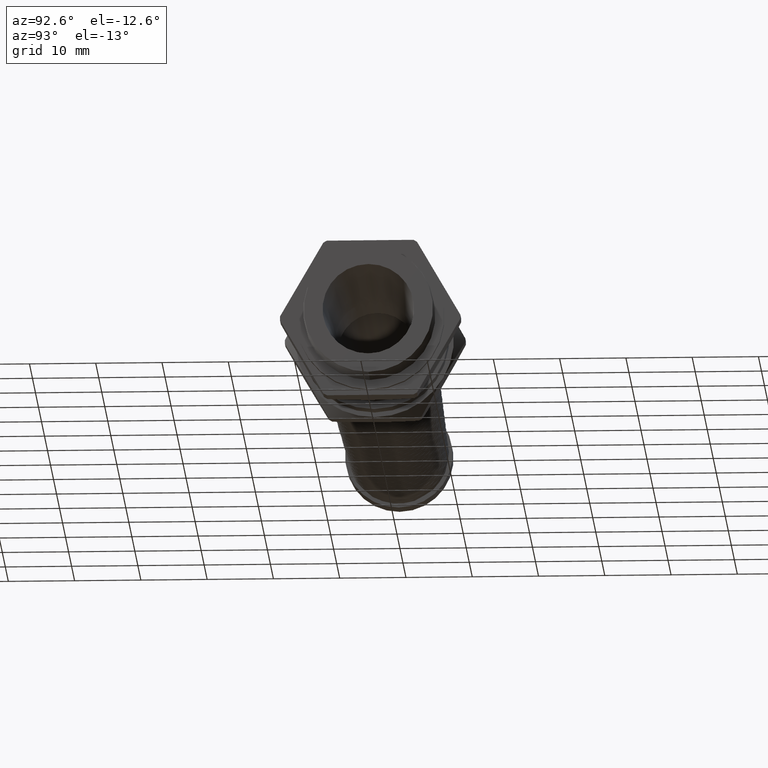
[diagram: clean part render]
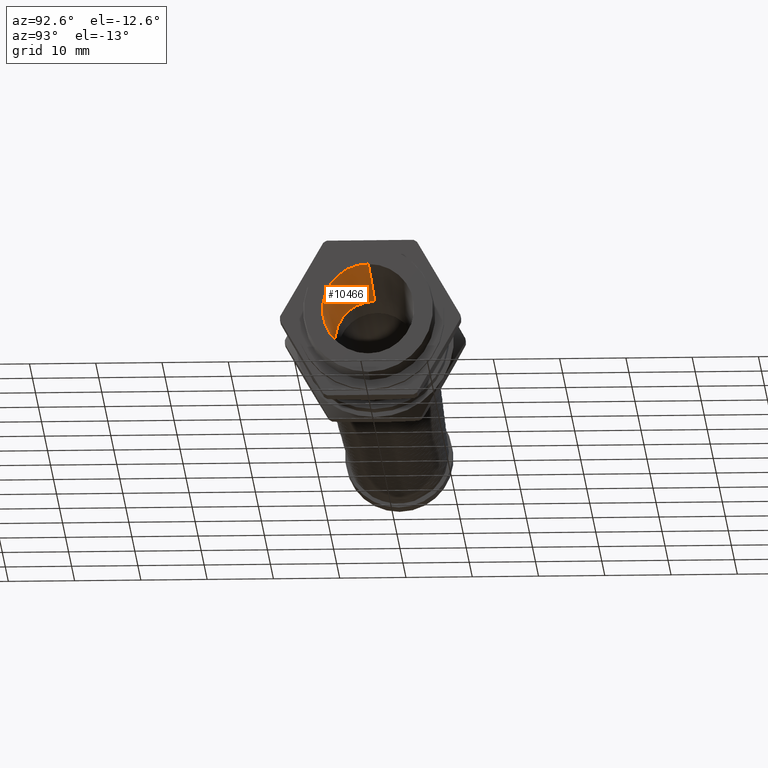
[diagram: same view with one face highlighted and labeled with its STEP entity id]
A machine part, auxiliary view. The second image highlights one B-rep face of the part: STEP entity #10466.
In plain terms, the highlighted conical surface has half-angle 2.5 deg.
Its self-contained STEP definition (entity closure, byte-faithful):
#10466 = ADVANCED_FACE ( 'NONE', ( #11790 ), #11789, .F. ) ;
#10467 = EDGE_LOOP ( 'NONE', ( #10468, #10469, #10525, #10528 ) ) ;
#10468 = ORIENTED_EDGE ( 'NONE', *, *, #10536, .T. ) ;
#10469 = ORIENTED_EDGE ( 'NONE', *, *, #10523, .T. ) ;
#10523 = EDGE_CURVE ( 'NONE', #10538, #10524, #11878, .T. ) ;
#10524 = VERTEX_POINT ( 'NONE', #11933 ) ;
#10525 = ORIENTED_EDGE ( 'NONE', *, *, #10526, .F. ) ;
#10526 = EDGE_CURVE ( 'NONE', #10527, #10524, #11932, .T. ) ;
#10527 = VERTEX_POINT ( 'NONE', #11927 ) ;
#10528 = ORIENTED_EDGE ( 'NONE', *, *, #10529, .F. ) ;
#10529 = EDGE_CURVE ( 'NONE', #10537, #10527, #11926, .T. ) ;
#10536 = EDGE_CURVE ( 'NONE', #10537, #10538, #11912, .T. ) ;
#10537 = VERTEX_POINT ( 'NONE', #11907 ) ;
#10538 = VERTEX_POINT ( 'NONE', #11906 ) ;
#11785 = DIRECTION ( 'NONE',  ( 0.0000000000000000000, 0.0000000000000000000, -1.000000000000000000 ) ) ;
#11786 = DIRECTION ( 'NONE',  ( 1.000000000000000000, 0.0000000000000000000, 0.0000000000000000000 ) ) ;
#11787 = CARTESIAN_POINT ( 'NONE',  ( -0.2570000000000000100, 0.0000000000000000000, 0.0000000000000000000 ) ) ;
#11788 = AXIS2_PLACEMENT_3D ( 'NONE', #11787, #11786, #11785 ) ;
#11789 = CONICAL_SURFACE ( 'NONE', #11788, 0.2349999999999999900, 0.04363323129985843100 ) ;
#11790 = FACE_OUTER_BOUND ( 'NONE', #10467, .T. ) ;
#11878 = LINE ( 'NONE', #11936, #11935 ) ;
#11906 = CARTESIAN_POINT ( 'NONE',  ( -0.2570000000000000100, 3.104362183904395700E-017, 0.2349999999999999900 ) ) ;
#11907 = CARTESIAN_POINT ( 'NONE',  ( -0.2570000000000000100, 0.0000000000000000000, -0.2349999999999999900 ) ) ;
#11908 = DIRECTION ( 'NONE',  ( 0.0000000000000000000, 0.0000000000000000000, 1.000000000000000000 ) ) ;
#11909 = DIRECTION ( 'NONE',  ( -1.000000000000000000, 0.0000000000000000000, 0.0000000000000000000 ) ) ;
#11910 = CARTESIAN_POINT ( 'NONE',  ( -0.2570000000000000100, 0.0000000000000000000, 0.0000000000000000000 ) ) ;
#11911 = AXIS2_PLACEMENT_3D ( 'NONE', #11910, #11909, #11908 ) ;
#11912 = CIRCLE ( 'NONE', #11911, 0.2349999999999999900 ) ;
#11923 = DIRECTION ( 'NONE',  ( 0.9990482215818576900, 0.0000000000000000000, -0.04361938736533619400 ) ) ;
#11924 = VECTOR ( 'NONE', #11923, 39.37007874015748100 ) ;
#11925 = CARTESIAN_POINT ( 'NONE',  ( -0.2570000000000000100, 0.0000000000000000000, -0.2349999999999999900 ) ) ;
#11926 = LINE ( 'NONE', #11925, #11924 ) ;
#11927 = CARTESIAN_POINT ( 'NONE',  ( 0.5899999999999999700, 0.0000000000000000000, -0.2719808186435098700 ) ) ;
#11928 = DIRECTION ( 'NONE',  ( 0.0000000000000000000, 0.0000000000000000000, 1.000000000000000000 ) ) ;
#11929 = DIRECTION ( 'NONE',  ( -1.000000000000000000, 0.0000000000000000000, 0.0000000000000000000 ) ) ;
#11930 = CARTESIAN_POINT ( 'NONE',  ( 0.5899999999999999700, 0.0000000000000000000, 0.0000000000000000000 ) ) ;
#11931 = AXIS2_PLACEMENT_3D ( 'NONE', #11930, #11929, #11928 ) ;
#11932 = CIRCLE ( 'NONE', #11931, 0.2719808186435098700 ) ;
#11933 = CARTESIAN_POINT ( 'NONE',  ( 0.5899999999999999700, 3.330804389812511500E-017, 0.2719808186435098700 ) ) ;
#11934 = DIRECTION ( 'NONE',  ( 0.9990482215818576900, 5.341834311772747100E-018, 0.04361938736533619400 ) ) ;
#11935 = VECTOR ( 'NONE', #11934, 39.37007874015748100 ) ;
#11936 = CARTESIAN_POINT ( 'NONE',  ( -0.2570000000000000100, 2.877919977996279800E-017, 0.2349999999999999900 ) ) ;